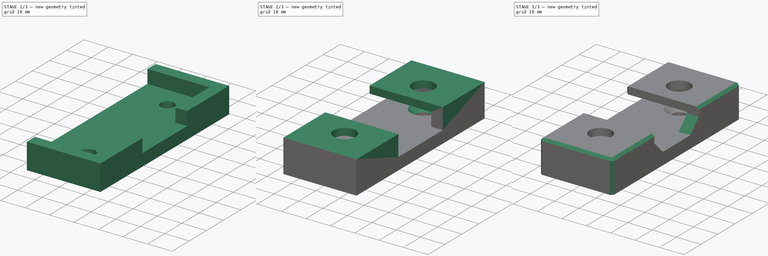
[diagram: build sequence overview — one tinted view per stage of 3, left to right]
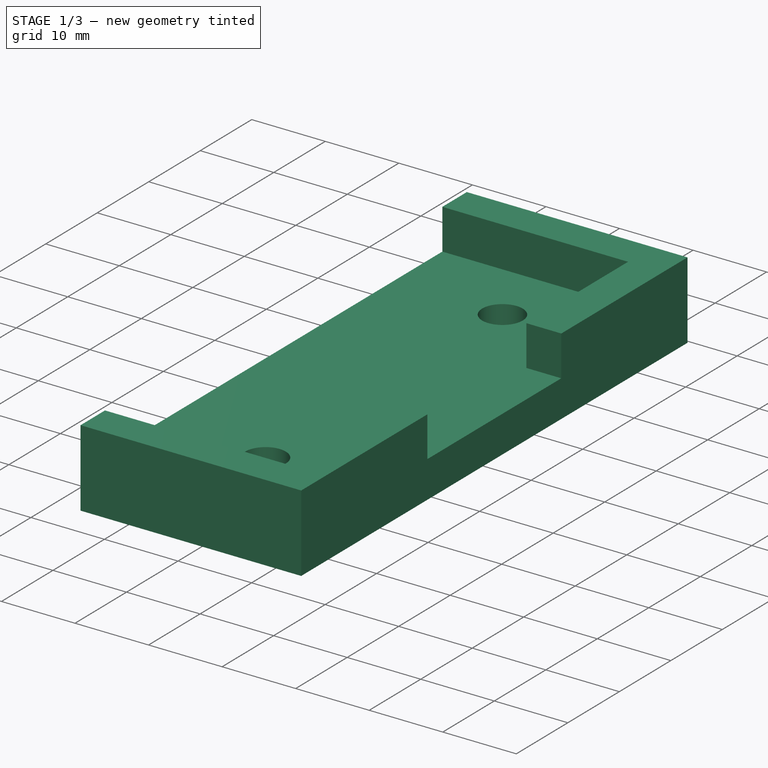
[diagram: stage 1 of 3 — iso view after this stage's code; geometry added in this stage tinted green]
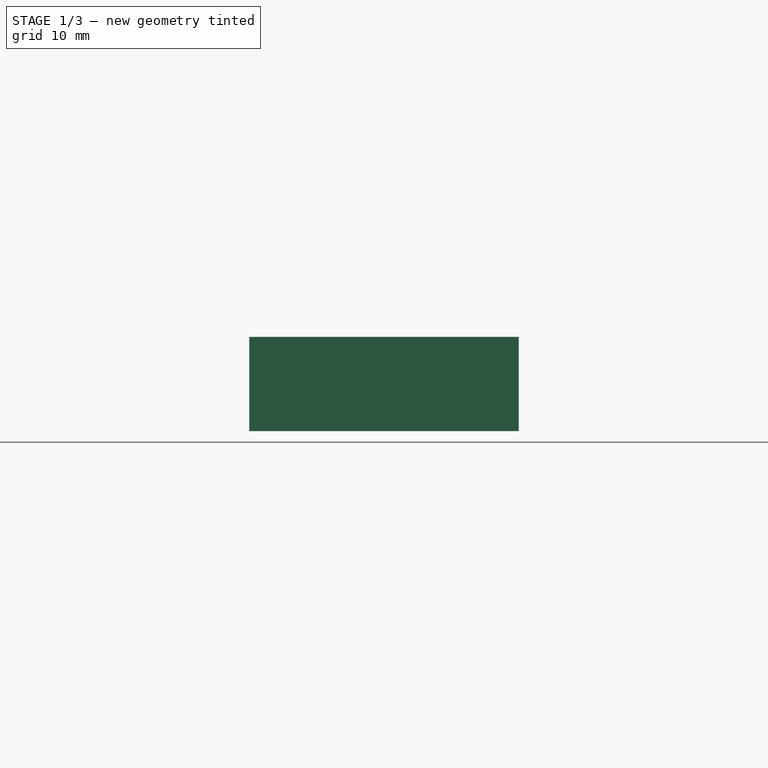
[diagram: stage 1 of 3 — front view after this stage's code; geometry added in this stage tinted green]
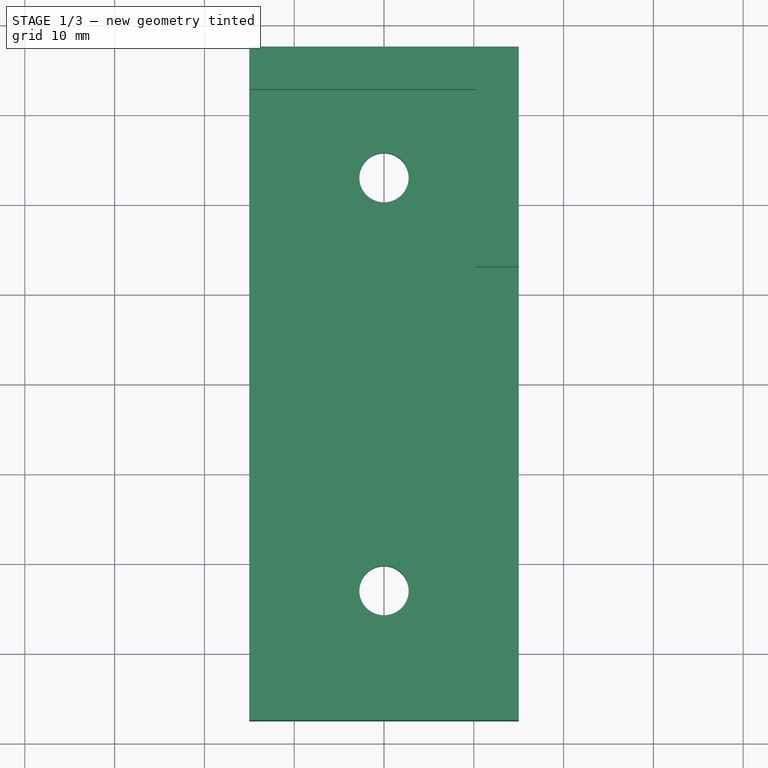
[diagram: stage 1 of 3 — top view after this stage's code; geometry added in this stage tinted green]
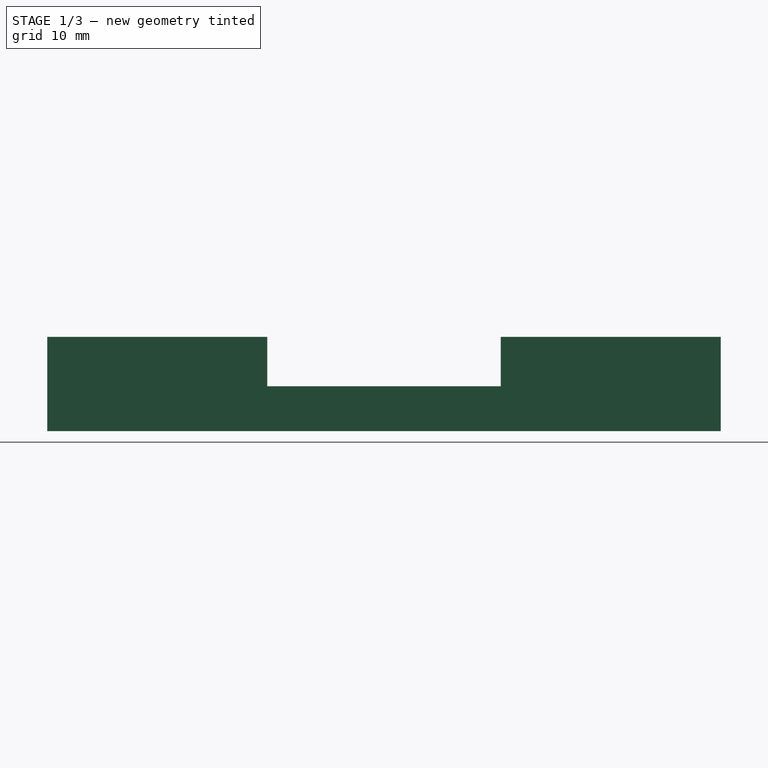
[diagram: stage 1 of 3 — right view after this stage's code; geometry added in this stage tinted green]
FCSTD DOCUMENT  (FreeCAD 0.19R23074 (Git))
Label: camera mount
License: All rights reserved
LicenseURL: http://en.wikipedia.org/wiki/All_rights_reserved
objects: Sketcher::SketchObject×5, PartDesign::Pad×3, PartDesign::Chamfer×3, Spreadsheet::Sheet×1, PartDesign::Pocket×1, PartDesign::Body×1
note: 20 computed .brp shape members not serialized (recipe doc carries the construction recipe); baked Part::Feature solids carry a one-line shape summary decoded from their .brp

FEATURE [Sketcher::SketchObject] Sketch
  MapMode = 5
  Support = -> [XY_Plane]
  expr: Constraints[10] = <<dim>>.orig_y + <<dim>>.slack
  expr: Constraints[9] = <<dim>>.orig_x + <<dim>>.slack
  sketch-geometry (4):
    g0: LineSegment StartX=-10.25 StartY=32.75 StartZ=0 EndX=10.25 EndY=32.75 EndZ=0
    g1: LineSegment StartX=10.25 StartY=32.75 StartZ=0 EndX=10.25 EndY=-32.75 EndZ=0
    g2: LineSegment StartX=10.25 StartY=-32.75 StartZ=0 EndX=-10.25 EndY=-32.75 EndZ=0
    g3: LineSegment StartX=-10.25 StartY=-32.75 StartZ=0 EndX=-10.25 EndY=32.75 EndZ=0
  constraints (11):
    c: Coincident(g0,g1)
    c: Coincident(g1,g2)
    c: Coincident(g2,g3)
    c: Coincident(g3,g0)
    c: Horizontal(g0)
    c: Horizontal(g2)
    c: Vertical(g1)
    c: Vertical(g3)
    c: Symmetric(g1,g0,g-1)
    c: DistanceX(g0,g0) = 20.5
    c: DistanceY(g1,g1) = 65.5
FEATURE [Spreadsheet::Sheet] Spreadsheet  label="dim"
  cells = A2=orig_x; B2(orig_x)=20; A3=orig_y; B3(orig_y)=65; A4=orig_z; B4(orig_z)=5; A5=slack; B5(slack)=0.5; A7=wall; B7(wall)=5; A8=roof; B8(roof)=3; A9=hole_d; B9(hole_d)=5.5; A10=hole_dist; B10(hole_dist)=46; A11=screw_head; B11(screw_head)=9; A12=mid_spacing; B12(mid_spacing)=26
FEATURE [Sketcher::SketchObject] Sketch001
  MapMode = 5
  Support = -> [XY_Plane]
  expr: Constraints[26] = <<dim>>.hole_dist
  expr: Constraints[25] = <<dim>>.hole_d
  expr: Constraints[20] = <<dim>>.wall
  expr: Constraints[19] = <<dim>>.wall
  expr: Constraints[9] = <<dim>>.orig_x
  expr: Constraints[10] = <<dim>>.orig_y
  sketch-geometry (10):
    g0: LineSegment [constr] StartX=-10 StartY=32.5 StartZ=0 EndX=10 EndY=32.5 EndZ=0
    g1: LineSegment [constr] StartX=10 StartY=32.5 StartZ=0 EndX=10 EndY=-32.5 EndZ=0
    g2: LineSegment [constr] StartX=10 StartY=-32.5 StartZ=0 EndX=-10 EndY=-32.5 EndZ=0
    g3: LineSegment [constr] StartX=-10 StartY=-32.5 StartZ=0 EndX=-10 EndY=32.5 EndZ=0
    g4: LineSegment StartX=-15 StartY=37.5 StartZ=0 EndX=15 EndY=37.5 EndZ=0
    g5: LineSegment StartX=15 StartY=37.5 StartZ=0 EndX=15 EndY=-37.5 EndZ=0
    g6: LineSegment StartX=15 StartY=-37.5 StartZ=0 EndX=-15 EndY=-37.5 EndZ=0
    g7: LineSegment StartX=-15 StartY=-37.5 StartZ=0 EndX=-15 EndY=37.5 EndZ=0
    g8: Circle CenterX=0 CenterY=23 CenterZ=0 NormalX=0 NormalY=0 NormalZ=1 AngleXU=0 Radius=2.75
    g9: Circle CenterX=0 CenterY=-23 CenterZ=0 NormalX=0 NormalY=0 NormalZ=1 AngleXU=0 Radius=2.75
  constraints (27):
    c: Coincident(g0,g1)
    c: Coincident(g1,g2)
    c: Coincident(g2,g3)
    c: Coincident(g3,g0)
    c: Horizontal(g0)
    c: Horizontal(g2)
    c: Vertical(g1)
    c: Vertical(g3)
    c: Symmetric(g1,g0,g-1)
    c: DistanceX(g0,g0) = 20
    c: DistanceY(g1,g1) = 65
    c: Coincident(g4,g5)
    c: Coincident(g5,g6)
    c: Coincident(g6,g7)
    c: Coincident(g7,g4)
    c: Horizontal(g4)
    c: Horizontal(g6)
    c: Vertical(g5)
    c: Vertical(g7)
    c: DistanceX(g0,g4) = 5
    c: DistanceY(g0,g4) = 5
    c: Symmetric(g4,g6,g-1)
    c: PointOnObject(g8,g-2)
    c: Symmetric(g9,g8,g-1)
    c: Equal(g8,g9)
    c: Diameter(g8) = 5.5
    c: DistanceY(g9,g8) = 46
FEATURE [PartDesign::Pad] Pad
  Direction = (1,1,1)
  Length = 5
  Length2 = 100
  Profile = -> Sketch001
  Refine = true
  Type = 0
  expr: Length = <<dim>>.orig_z
FEATURE [Sketcher::SketchObject] Sketch002
  ExternalGeometry = -> [Sketch,Pad]
  MapMode = 5
  Placement = pos=(0,0,5) rot=(0,0,1;0rad)
  Support = -> [Pad]
  expr: Constraints[28] = <<dim>>.mid_spacing
  sketch-geometry (12):
    g0: LineSegment StartX=-15 StartY=37.5 StartZ=0 EndX=15 EndY=37.5 EndZ=0
    g1: LineSegment StartX=15 StartY=37.5 StartZ=0 EndX=15 EndY=13 EndZ=0
    g2: LineSegment StartX=15 StartY=13 StartZ=0 EndX=10.25 EndY=13 EndZ=0
    g3: LineSegment StartX=10.25 StartY=13 StartZ=0 EndX=10.25 EndY=32.75 EndZ=0
    g4: LineSegment StartX=10.25 StartY=32.75 StartZ=0 EndX=-15 EndY=32.75 EndZ=0
    g5: LineSegment StartX=-15 StartY=32.75 StartZ=0 EndX=-15 EndY=37.5 EndZ=0
    g6: LineSegment StartX=-15 StartY=-37.5 StartZ=0 EndX=15 EndY=-37.5 EndZ=0
    g7: LineSegment StartX=15 StartY=-37.5 StartZ=0 EndX=15 EndY=-13 EndZ=0
    g8: LineSegment StartX=15 StartY=-13 StartZ=0 EndX=10.25 EndY=-13 EndZ=0
    g9: LineSegment StartX=10.25 StartY=-13 StartZ=0 EndX=10.25 EndY=-32.75 EndZ=0
    g10: LineSegment StartX=10.25 StartY=-32.75 StartZ=0 EndX=-15 EndY=-32.75 EndZ=0
    g11: LineSegment StartX=-15 StartY=-32.75 StartZ=0 EndX=-15 EndY=-37.5 EndZ=0
  constraints (29):
    c: Coincident(g-5,g0)
    c: Coincident(g0,g-5)
    c: Coincident(g0,g1)
    c: Vertical(g1)
    c: Coincident(g1,g2)
    c: Horizontal(g2)
    c: Coincident(g2,g3)
    c: Coincident(g3,g-3)
    c: Vertical(g3)
    c: Coincident(g3,g4)
    c: Horizontal(g4)
    c: Coincident(g4,g5)
    c: Coincident(g5,g0)
    c: PointOnObject(g4,g-7)
    c: Coincident(g-7,g6)
    c: Coincident(g6,g-6)
    c: Coincident(g6,g7)
    c: Coincident(g7,g8)
    c: Horizontal(g8)
    c: Coincident(g8,g9)
    c: Coincident(g9,g-4)
    c: Vertical(g9)
    c: Coincident(g9,g10)
    c: PointOnObject(g10,g-7)
    c: Horizontal(g10)
    c: Coincident(g10,g11)
    c: Coincident(g11,g6)
    c: Symmetric(g7,g1,g-1)
    c: DistanceY(g7,g1) = 26
FEATURE [PartDesign::Pad] Pad001
  BaseFeature = -> Pad
  Direction = (1,1,1)
  Length = 5.5
  Length2 = 100
  Profile = -> Sketch002
  Refine = true
  Type = 0
  expr: Length = <<dim>>.orig_z + <<dim>>.slack
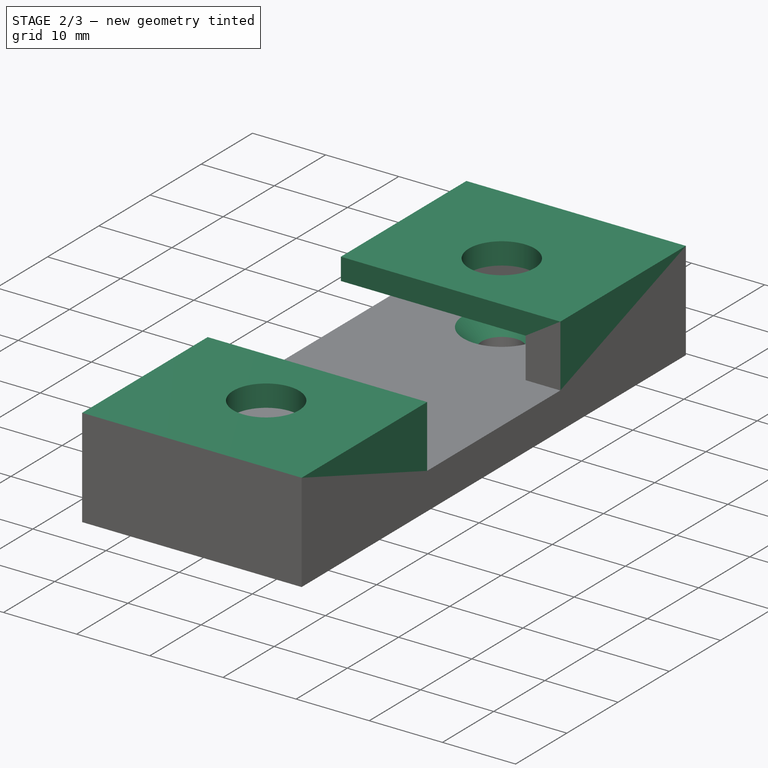
[diagram: stage 2 of 3 — iso view after this stage's code; geometry added in this stage tinted green]
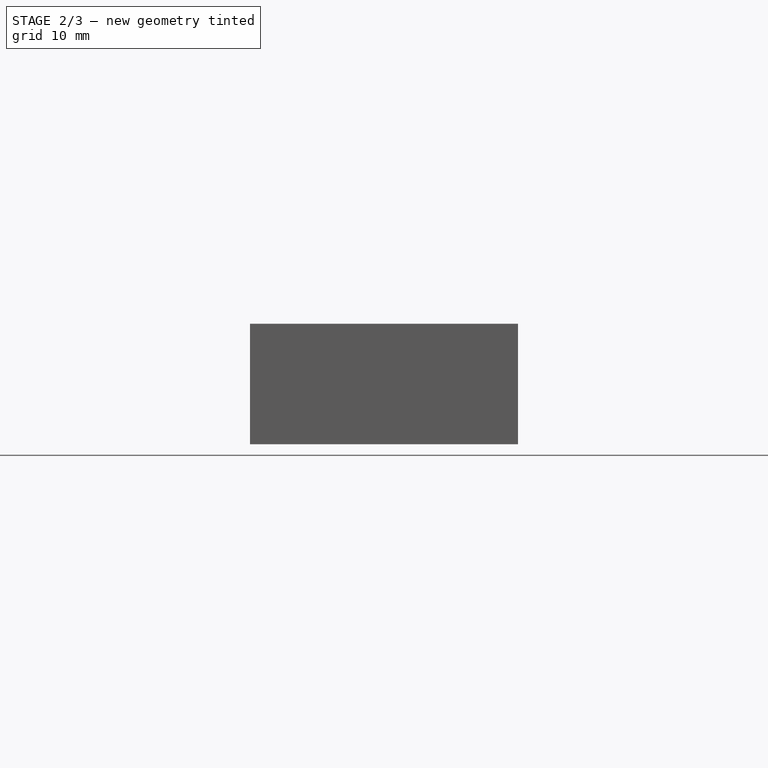
[diagram: stage 2 of 3 — front view after this stage's code; geometry added in this stage tinted green]
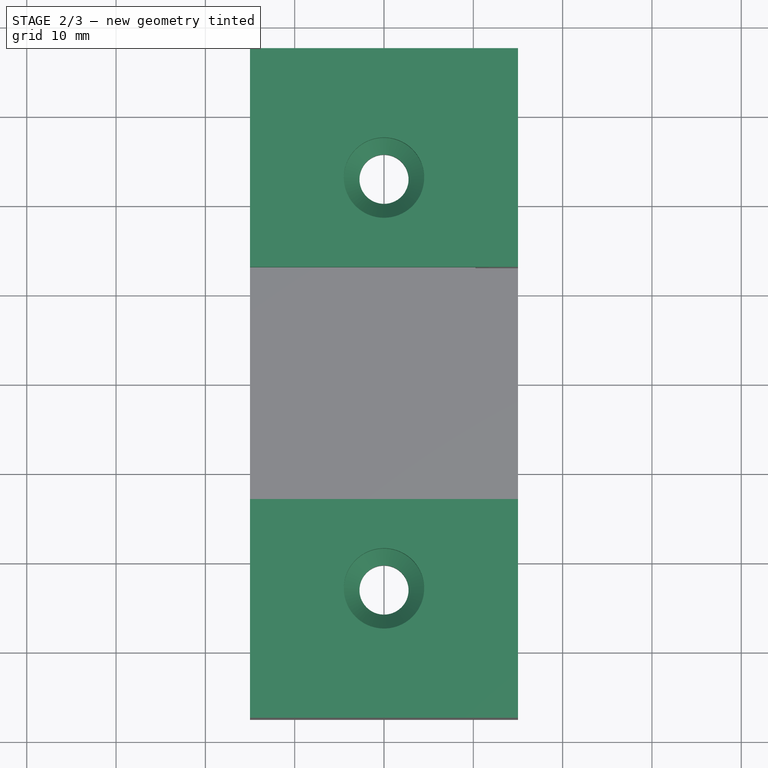
[diagram: stage 2 of 3 — top view after this stage's code; geometry added in this stage tinted green]
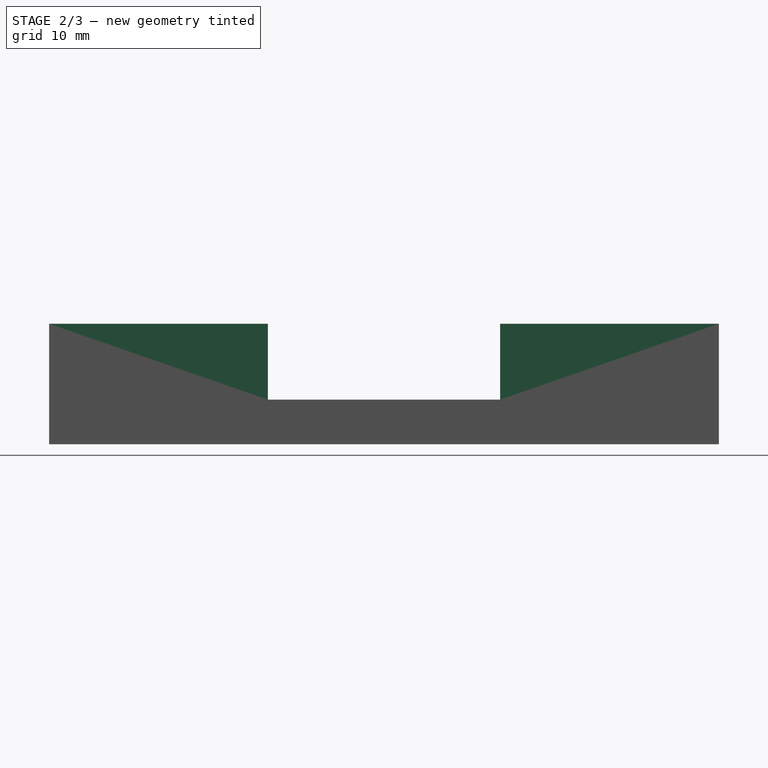
[diagram: stage 2 of 3 — right view after this stage's code; geometry added in this stage tinted green]
FEATURE [Sketcher::SketchObject] Sketch003
  ExternalGeometry = -> [Pad001]
  MapMode = 5
  Placement = pos=(0,0,10.5) rot=(0,0,1;0rad)
  Support = -> [Pad001]
  sketch-geometry (8):
    g0: LineSegment StartX=-15 StartY=37.5 StartZ=0 EndX=15 EndY=37.5 EndZ=0
    g1: LineSegment StartX=15 StartY=37.5 StartZ=0 EndX=15 EndY=13 EndZ=0
    g2: LineSegment StartX=15 StartY=13 StartZ=0 EndX=-15 EndY=13 EndZ=0
    g3: LineSegment StartX=-15 StartY=13 StartZ=0 EndX=-15 EndY=37.5 EndZ=0
    g4: LineSegment StartX=-15 StartY=-37.5 StartZ=0 EndX=15 EndY=-37.5 EndZ=0
    g5: LineSegment StartX=15 StartY=-37.5 StartZ=0 EndX=15 EndY=-13 EndZ=0
    g6: LineSegment StartX=15 StartY=-13 StartZ=0 EndX=-15 EndY=-13 EndZ=0
    g7: LineSegment StartX=-15 StartY=-13 StartZ=0 EndX=-15 EndY=-37.5 EndZ=0
  constraints (20):
    c: Coincident(g0,g1)
    c: Coincident(g1,g2)
    c: Coincident(g2,g3)
    c: Coincident(g3,g0)
    c: Horizontal(g0)
    c: Horizontal(g2)
    c: Vertical(g1)
    c: Vertical(g3)
    c: Coincident(g0,g-4)
    c: Coincident(g1,g-3)
    c: Coincident(g4,g5)
    c: Coincident(g5,g6)
    c: Coincident(g6,g7)
    c: Coincident(g7,g4)
    c: Horizontal(g4)
    c: Horizontal(g6)
    c: Vertical(g5)
    c: Vertical(g7)
    c: Coincident(g4,g-6)
    c: Coincident(g5,g-5)
FEATURE [PartDesign::Pad] Pad002
  BaseFeature = -> Pad001
  Direction = (1,1,1)
  Length = 3
  Length2 = 100
  Profile = -> Sketch003
  Refine = true
  Type = 0
  expr: Length = <<dim>>.roof
FEATURE [PartDesign::Chamfer] Chamfer
  Angle = 45
  Base = -> Pad002 [Edge14,Edge16]
  BaseFeature = -> Pad002
  ChamferType = 0
  FlipDirection = false
  Refine = true
  Size = 2.5
  Size2 = 1
  SupportTransform = false
FEATURE [Sketcher::SketchObject] Sketch004
  ExternalGeometry = -> [Chamfer]
  MapMode = 5
  Placement = pos=(0,0,13.5) rot=(0,0,1;0rad)
  Support = -> [Chamfer]
  expr: Constraints[2] = <<dim>>.screw_head
  sketch-geometry (2):
    g0: Circle CenterX=0 CenterY=23 CenterZ=0 NormalX=0 NormalY=0 NormalZ=1 AngleXU=0 Radius=4.5
    g1: Circle CenterX=0 CenterY=-23 CenterZ=0 NormalX=0 NormalY=0 NormalZ=1 AngleXU=0 Radius=4.5
  constraints (4):
    c: Coincident(g0,g-3)
    c: Coincident(g1,g-4)
    c: Diameter(g0) = 9
    c: Equal(g0,g1)
FEATURE [PartDesign::Pocket] Pocket
  BaseFeature = -> Chamfer
  Length = 5
  Length2 = 100
  Profile = -> Sketch004
  Refine = true
  Type = 2
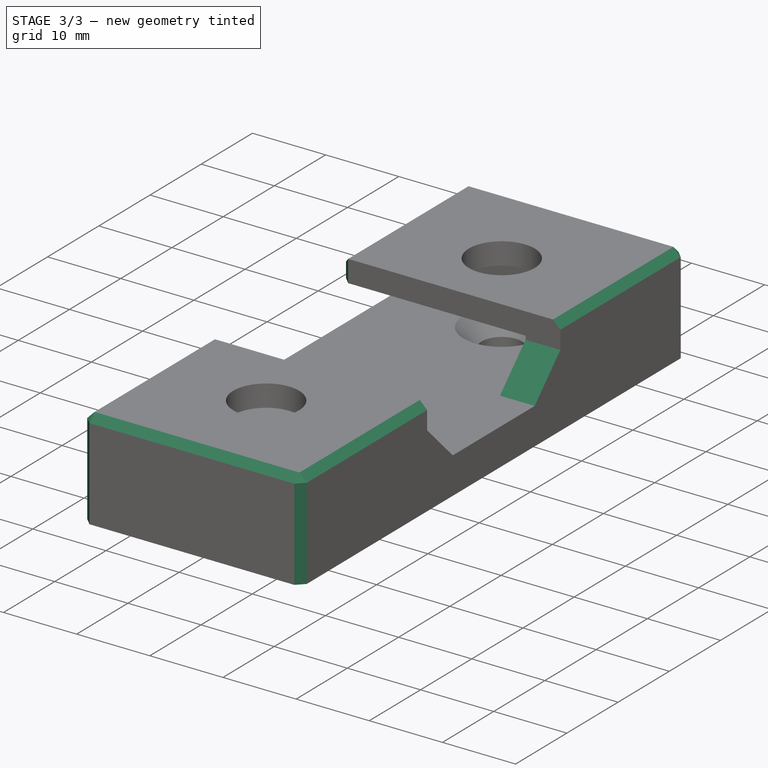
[diagram: stage 3 of 3 — iso view after this stage's code; geometry added in this stage tinted green]
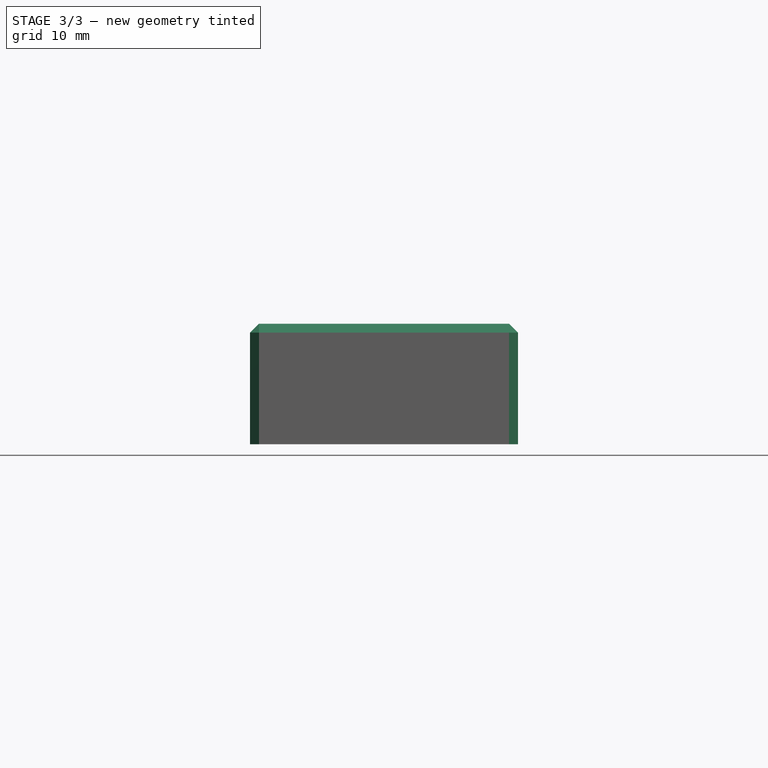
[diagram: stage 3 of 3 — front view after this stage's code; geometry added in this stage tinted green]
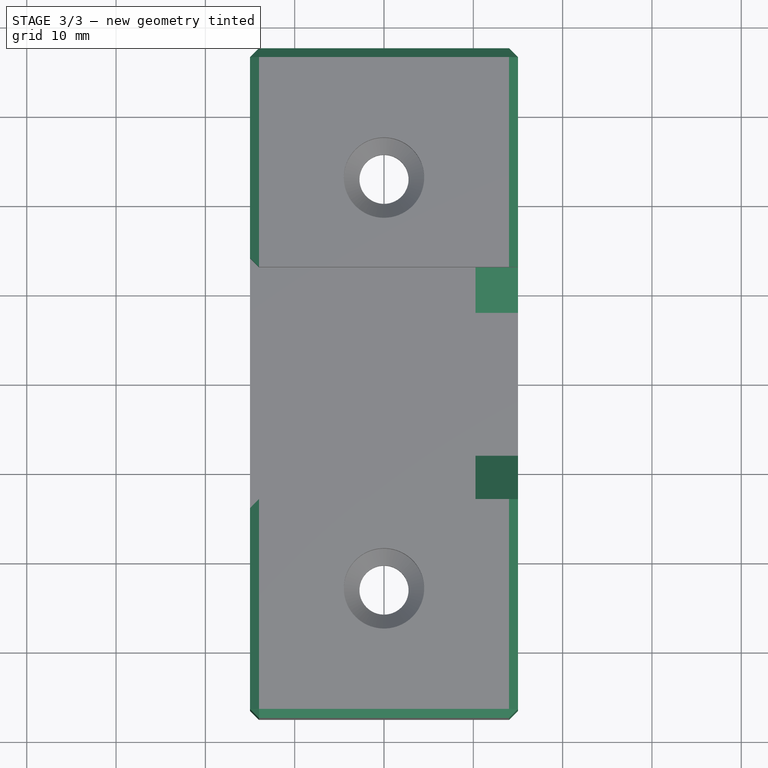
[diagram: stage 3 of 3 — top view after this stage's code; geometry added in this stage tinted green]
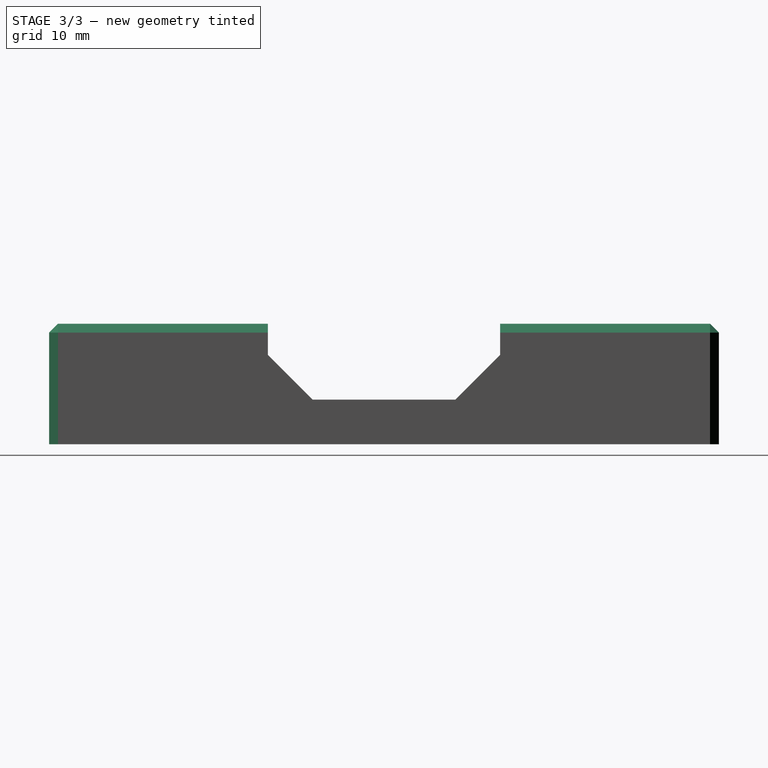
[diagram: stage 3 of 3 — right view after this stage's code; geometry added in this stage tinted green]
FEATURE [PartDesign::Chamfer] Chamfer001
  Angle = 45
  Base = -> Pocket [Edge16,Edge14]
  BaseFeature = -> Pocket
  ChamferType = 0
  FlipDirection = false
  Refine = true
  Size = 5
  Size2 = 1
  SupportTransform = false
FEATURE [PartDesign::Chamfer] Chamfer002
  Angle = 45
  Base = -> Chamfer001 [Edge15,Edge51,Edge21,Edge59,Edge42,Edge37,Edge41,Edge38,Edge36,Edge43,Edge20,Edge16]
  BaseFeature = -> Chamfer001
  ChamferType = 0
  FlipDirection = false
  Refine = true
  Size = 1
  Size2 = 1
  SupportTransform = false
FEATURE [PartDesign::Body] Body
  Group = -> [Sketch,Sketch001,Pad,Sketch002,Pad001,Sketch003,Pad002,Chamfer,Sketch004,Pocket,Chamfer001,Chamfer002]
  Origin = -> Origin
  Tip = -> Chamfer002
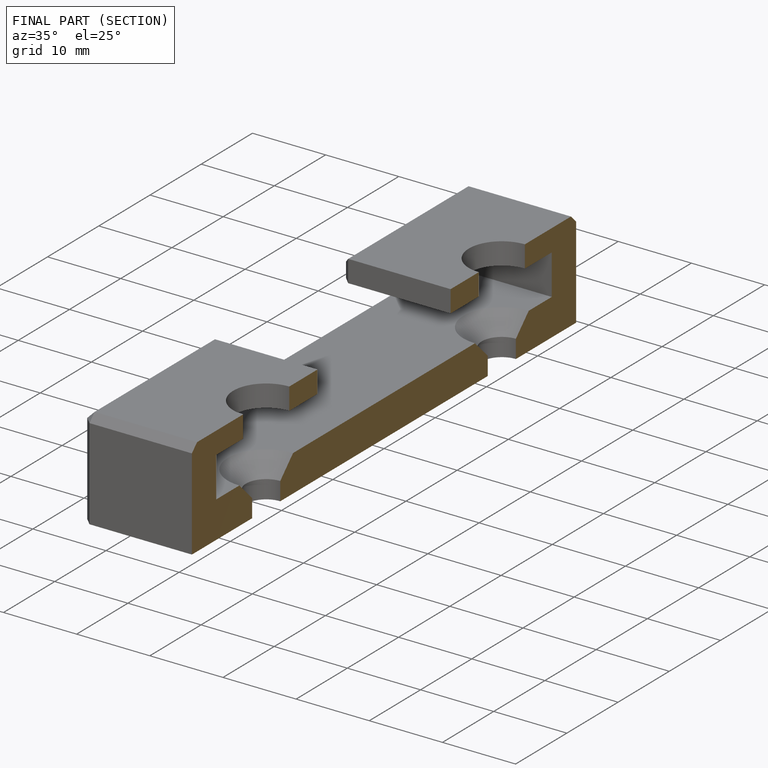
[diagram: finished part — half-section view (interior)]
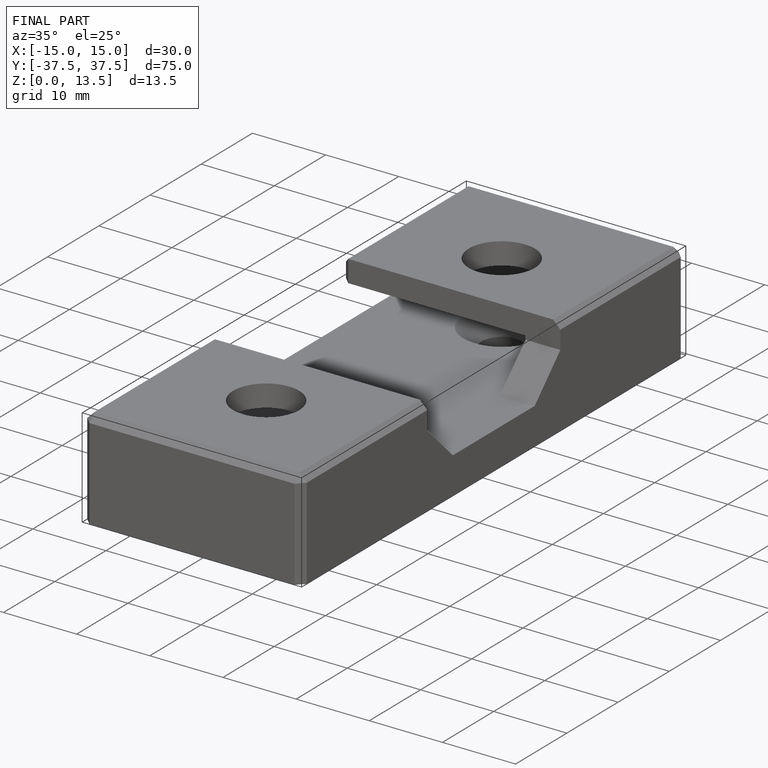
[diagram: finished part — iso view with bounding-box wireframe]
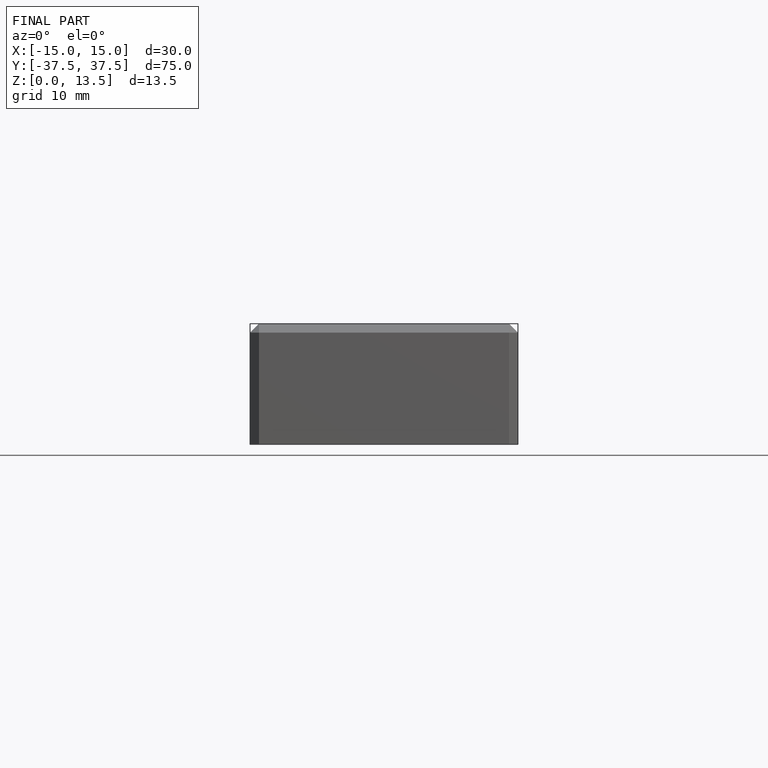
[diagram: finished part — front view with bounding-box wireframe]
